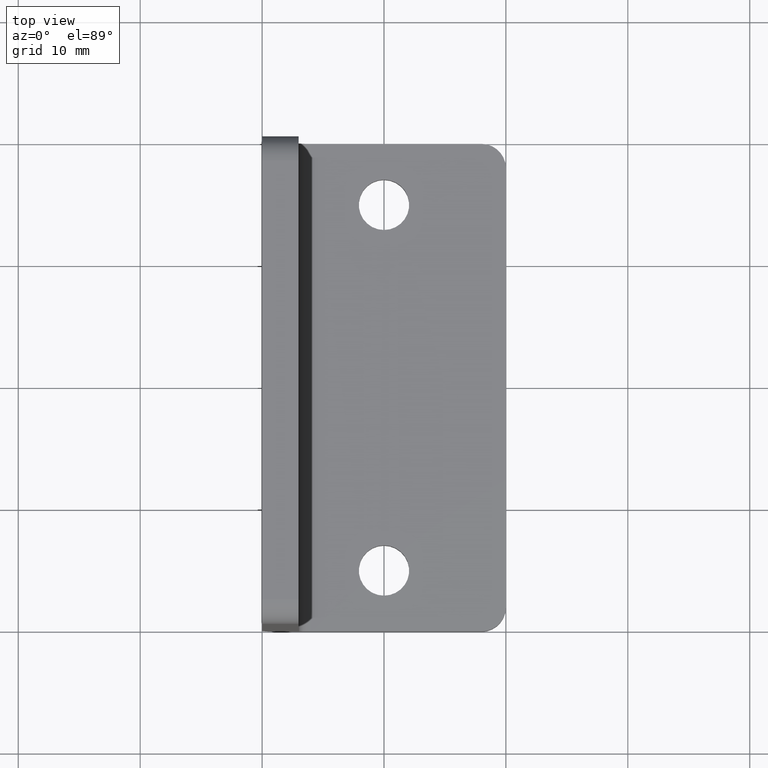
[diagram: clean part render]
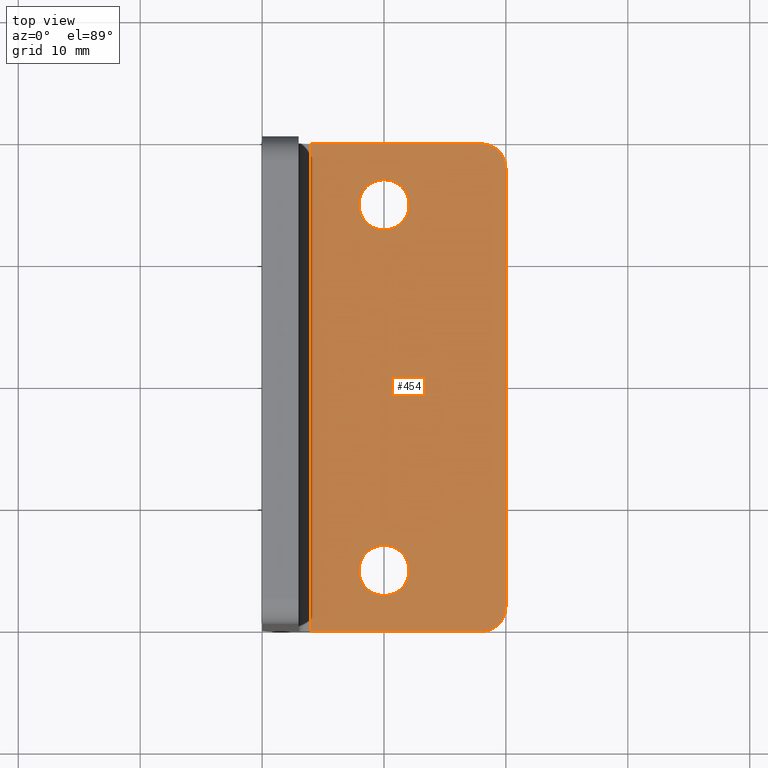
[diagram: same view with one face highlighted and labeled with its STEP entity id]
A machine part, top view. The second image highlights one B-rep face of the part: STEP entity #454.
In plain terms, the highlighted planar face has unit normal (0, 0, 1).
Its self-contained STEP definition (entity closure, byte-faithful):
#38=LINE('',#748,#78);
#40=LINE('',#753,#80);
#41=LINE('',#755,#81);
#42=LINE('',#757,#82);
#78=VECTOR('',#596,36.);
#80=VECTOR('',#600,14.);
#81=VECTOR('',#601,40.);
#82=VECTOR('',#602,14.);
#100=PLANE('',#498);
#115=FACE_BOUND('',#157,.T.);
#116=FACE_BOUND('',#158,.T.);
#124=FACE_OUTER_BOUND('',#156,.T.);
#156=EDGE_LOOP('',(#355,#356,#357,#358,#359,#360));
#157=EDGE_LOOP('',(#361));
#158=EDGE_LOOP('',(#362));
#176=CIRCLE('',#475,2.067);
#178=CIRCLE('',#478,2.067);
#193=CIRCLE('',#499,2.);
#194=CIRCLE('',#500,2.);
#200=VERTEX_POINT('',#663);
#202=VERTEX_POINT('',#668);
#237=VERTEX_POINT('',#745);
#238=VERTEX_POINT('',#747);
#239=VERTEX_POINT('',#751);
#240=VERTEX_POINT('',#752);
#241=VERTEX_POINT('',#754);
#242=VERTEX_POINT('',#756);
#244=EDGE_CURVE('',#200,#200,#176,.T.);
#246=EDGE_CURVE('',#202,#202,#178,.T.);
#284=EDGE_CURVE('',#237,#238,#38,.T.);
#286=EDGE_CURVE('',#239,#240,#40,.T.);
#287=EDGE_CURVE('',#240,#241,#41,.T.);
#288=EDGE_CURVE('',#242,#241,#42,.T.);
#289=EDGE_CURVE('',#242,#238,#193,.T.);
#290=EDGE_CURVE('',#237,#239,#194,.T.);
#355=ORIENTED_EDGE('',*,*,#286,.T.);
#356=ORIENTED_EDGE('',*,*,#287,.T.);
#357=ORIENTED_EDGE('',*,*,#288,.F.);
#358=ORIENTED_EDGE('',*,*,#289,.T.);
#359=ORIENTED_EDGE('',*,*,#284,.F.);
#360=ORIENTED_EDGE('',*,*,#290,.T.);
#361=ORIENTED_EDGE('',*,*,#246,.F.);
#362=ORIENTED_EDGE('',*,*,#244,.F.);
#454=ADVANCED_FACE('',(#124,#115,#116),#100,.T.);
#475=AXIS2_PLACEMENT_3D('',#664,#527,#528);
#478=AXIS2_PLACEMENT_3D('',#669,#533,#534);
#498=AXIS2_PLACEMENT_3D('',#750,#598,#599);
#499=AXIS2_PLACEMENT_3D('',#758,#603,#604);
#500=AXIS2_PLACEMENT_3D('',#759,#605,#606);
#527=DIRECTION('center_axis',(0.,0.,1.));
#528=DIRECTION('ref_axis',(0.,-1.,0.));
#533=DIRECTION('center_axis',(0.,0.,1.));
#534=DIRECTION('ref_axis',(0.,-1.,0.));
#596=DIRECTION('',(0.,-1.,0.));
#598=DIRECTION('center_axis',(0.,0.,1.));
#599=DIRECTION('ref_axis',(1.,0.,0.));
#600=DIRECTION('',(-1.,0.,0.));
#601=DIRECTION('',(0.,-1.,0.));
#602=DIRECTION('',(-1.,0.,0.));
#603=DIRECTION('center_axis',(0.,0.,1.));
#604=DIRECTION('ref_axis',(0.,-1.,0.));
#605=DIRECTION('center_axis',(0.,0.,1.));
#606=DIRECTION('ref_axis',(0.,-1.,0.));
#663=CARTESIAN_POINT('',(-10.,17.067,3.00000000000001));
#664=CARTESIAN_POINT('Origin',(-10.,15.,3.00000000000001));
#668=CARTESIAN_POINT('',(-10.,-12.933,3.00000000000001));
#669=CARTESIAN_POINT('Origin',(-10.,-15.,3.00000000000001));
#745=CARTESIAN_POINT('',(-1.285879E-15,18.,3.00000000000001));
#747=CARTESIAN_POINT('',(9.184851E-16,-18.,3.00000000000001));
#748=CARTESIAN_POINT('',(-1.285879E-15,18.,3.00000000000001));
#750=CARTESIAN_POINT('Origin',(-16.8,22.,3.00000000000001));
#751=CARTESIAN_POINT('',(-2.,20.,3.00000000000001));
#752=CARTESIAN_POINT('',(-16.,20.,3.00000000000001));
#753=CARTESIAN_POINT('',(-2.,20.,3.00000000000001));
#754=CARTESIAN_POINT('',(-16.,-20.,3.00000000000001));
#755=CARTESIAN_POINT('',(-16.,20.,3.00000000000001));
#756=CARTESIAN_POINT('',(-2.,-20.,3.00000000000001));
#757=CARTESIAN_POINT('',(-2.,-20.,3.00000000000001));
#758=CARTESIAN_POINT('Origin',(-2.,-18.,3.00000000000001));
#759=CARTESIAN_POINT('Origin',(-2.,18.,3.00000000000001));